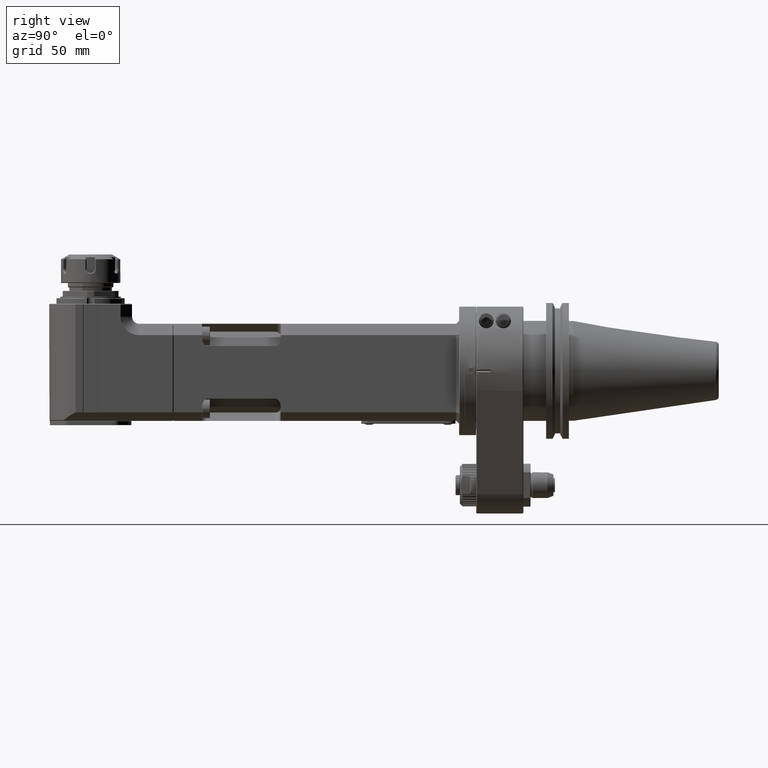
[diagram: clean part render]
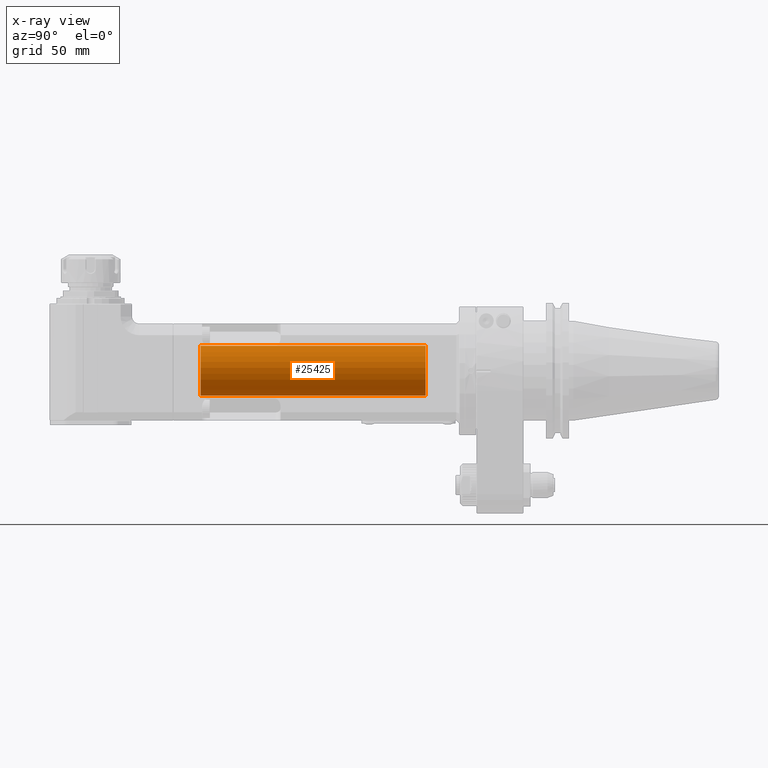
[diagram: x-ray — body ghosted, one internal face saturated and labeled with its STEP entity id]
A machine part, right view, then the same camera in x-ray: the body is ghosted and one INTERNAL B-rep face — a face not visible from any outside direction — is saturated and labeled: STEP entity #25425.
In plain terms, the highlighted cylindrical surface (bore or boss wall) has radius 17.5 mm, axis along (-0, 1, -0).
Its self-contained STEP definition (entity closure, byte-faithful):
#1652=CIRCLE('',#27691,17.5);
#1653=CIRCLE('',#27693,17.5);
#2606=CYLINDRICAL_SURFACE('',#27692,17.5);
#3451=FACE_OUTER_BOUND('',#5051,.T.);
#5051=EDGE_LOOP('',(#20356,#20357,#20358,#20359));
#7079=LINE('',#42762,#9170);
#9170=VECTOR('',#32815,17.5);
#11477=VERTEX_POINT('',#42758);
#11478=VERTEX_POINT('',#42761);
#14641=EDGE_CURVE('',#11477,#11477,#1652,.T.);
#14642=EDGE_CURVE('',#11477,#11478,#7079,.T.);
#14643=EDGE_CURVE('',#11478,#11478,#1653,.T.);
#20356=ORIENTED_EDGE('',*,*,#14641,.F.);
#20357=ORIENTED_EDGE('',*,*,#14642,.T.);
#20358=ORIENTED_EDGE('',*,*,#14643,.F.);
#20359=ORIENTED_EDGE('',*,*,#14642,.F.);
#25425=ADVANCED_FACE('',(#3451),#2606,.F.);
#27691=AXIS2_PLACEMENT_3D('',#42759,#32811,#32812);
#27692=AXIS2_PLACEMENT_3D('',#42760,#32813,#32814);
#27693=AXIS2_PLACEMENT_3D('',#42763,#32816,#32817);
#32811=DIRECTION('center_axis',(0.,1.,0.));
#32812=DIRECTION('ref_axis',(0.,0.,-1.));
#32813=DIRECTION('center_axis',(0.,1.,0.));
#32814=DIRECTION('ref_axis',(0.,0.,-1.));
#32815=DIRECTION('',(0.,1.,0.));
#32816=DIRECTION('center_axis',(0.,-1.,0.));
#32817=DIRECTION('ref_axis',(0.,0.,1.));
#42758=CARTESIAN_POINT('',(2.14313189850787E-15,-193.,17.5));
#42759=CARTESIAN_POINT('Origin',(0.,-193.,2.406431960325E-14));
#42760=CARTESIAN_POINT('Origin',(0.,-223.85,2.595333729093E-14));
#42761=CARTESIAN_POINT('',(2.14313189850787E-15,-35.5,17.5));
#42762=CARTESIAN_POINT('',(2.14313189850787E-15,-223.85,17.5));
#42763=CARTESIAN_POINT('Origin',(0.,-35.5,1.442022605996E-14));